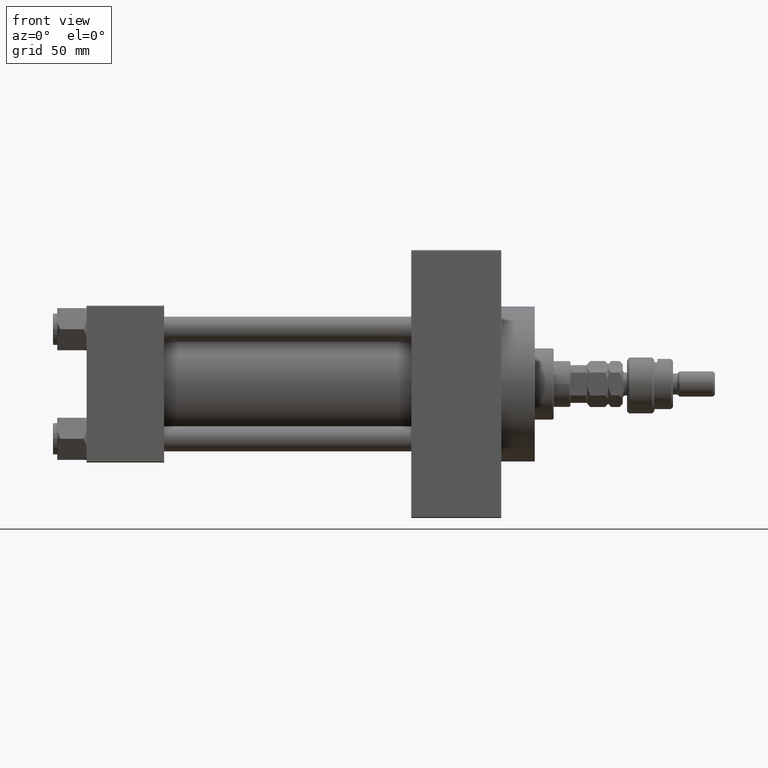
[diagram: clean part render]
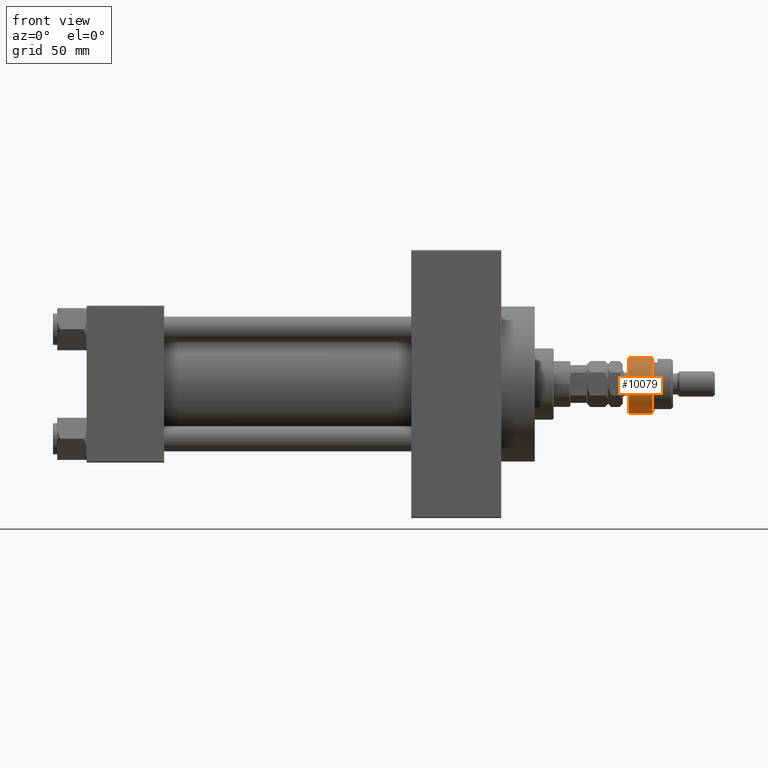
[diagram: same view with one face highlighted and labeled with its STEP entity id]
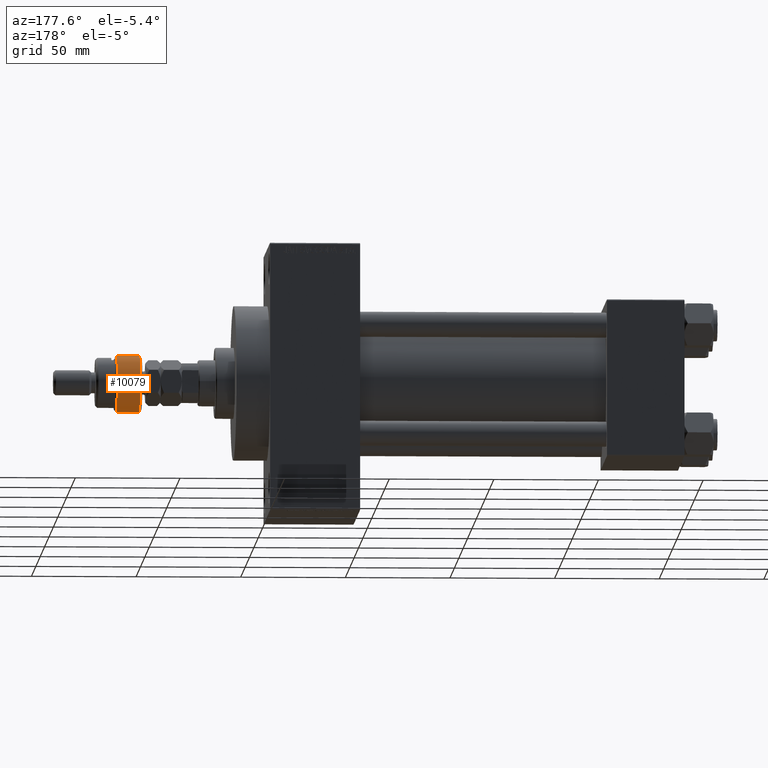
[diagram: same view with one face highlighted and labeled with its STEP entity id]
A machine part, front view. The second image highlights one B-rep face of the part: STEP entity #10079.
A second angle (auxiliary view) of the same face is appended — the face is thin or edge-on in the first view.
In plain terms, the highlighted cylindrical surface (edge-blend (fillet) strip) has radius 14 mm, axis along (-1, -0, 0).
Its self-contained STEP definition (entity closure, byte-faithful):
#3 = AXIS2_PLACEMENT_3D ( 'NONE', #33288, #6467, #48958 ) ;
#603 = ORIENTED_EDGE ( 'NONE', *, *, #37774, .T. ) ;
#926 = EDGE_CURVE ( 'NONE', #7327, #20882, #2562, .T. ) ;
#1398 = AXIS2_PLACEMENT_3D ( 'NONE', #3940, #27468, #19375 ) ;
#2562 = LINE ( 'NONE', #17998, #39945 ) ;
#2857 = CIRCLE ( 'NONE', #27877, 14.00000000000000000 ) ;
#3214 = CARTESIAN_POINT ( 'NONE',  ( 0.000000000000000000, 0.000000000000000000, 12.00000000000002842 ) ) ;
#3940 = CARTESIAN_POINT ( 'NONE',  ( 0.000000000000000000, 0.000000000000000000, 1.000000000000018208 ) ) ;
#5854 = DIRECTION ( 'NONE',  ( -0.000000000000000000, -0.000000000000000000, -1.000000000000000000 ) ) ;
#6217 = VECTOR ( 'NONE', #33834, 1000.000000000000000 ) ;
#6467 = DIRECTION ( 'NONE',  ( -0.000000000000000000, -0.000000000000000000, 1.000000000000000000 ) ) ;
#7327 = VERTEX_POINT ( 'NONE', #30680 ) ;
#7760 = DIRECTION ( 'NONE',  ( 0.000000000000000000, 0.000000000000000000, -1.000000000000000000 ) ) ;
#8658 = AXIS2_PLACEMENT_3D ( 'NONE', #29715, #11456, #38266 ) ;
#10079 = ADVANCED_FACE ( 'NONE', ( #26167 ), #33510, .T. ) ;
#11456 = DIRECTION ( 'NONE',  ( -0.000000000000000000, -0.000000000000000000, -1.000000000000000000 ) ) ;
#13220 = ORIENTED_EDGE ( 'NONE', *, *, #46482, .T. ) ;
#15116 = CARTESIAN_POINT ( 'NONE',  ( -12.64911064067351809, -5.999999999999999112, 1.000000000000021760 ) ) ;
#17998 = CARTESIAN_POINT ( 'NONE',  ( -12.64911064067351809, -5.999999999999999112, 14.50000000000000000 ) ) ;
#19375 = DIRECTION ( 'NONE',  ( 1.000000000000000000, 0.000000000000000000, 0.000000000000000000 ) ) ;
#19518 = VERTEX_POINT ( 'NONE', #26555 ) ;
#20204 = CARTESIAN_POINT ( 'NONE',  ( -12.64911064067351809, 6.000000000000000000, 12.00000000000002842 ) ) ;
#20882 = VERTEX_POINT ( 'NONE', #15116 ) ;
#24483 = ORIENTED_EDGE ( 'NONE', *, *, #24629, .T. ) ;
#24629 = EDGE_CURVE ( 'NONE', #20882, #19518, #27499, .T. ) ;
#25759 = LINE ( 'NONE', #37378, #6217 ) ;
#26167 = FACE_OUTER_BOUND ( 'NONE', #27424, .T. ) ;
#26555 = CARTESIAN_POINT ( 'NONE',  ( 14.00000000000000000, 0.000000000000000000, 1.000000000000018208 ) ) ;
#27424 = EDGE_LOOP ( 'NONE', ( #29282, #603, #30194, #24483, #13220 ) ) ;
#27468 = DIRECTION ( 'NONE',  ( -0.000000000000000000, -0.000000000000000000, 1.000000000000000000 ) ) ;
#27499 = CIRCLE ( 'NONE', #3, 14.00000000000000000 ) ;
#27877 = AXIS2_PLACEMENT_3D ( 'NONE', #3214, #7760, #30532 ) ;
#29282 = ORIENTED_EDGE ( 'NONE', *, *, #45750, .F. ) ;
#29715 = CARTESIAN_POINT ( 'NONE',  ( 0.000000000000000000, 0.000000000000000000, 13.00000000000000000 ) ) ;
#30194 = ORIENTED_EDGE ( 'NONE', *, *, #926, .T. ) ;
#30532 = DIRECTION ( 'NONE',  ( 1.000000000000000000, 0.000000000000000000, 0.000000000000000000 ) ) ;
#30680 = CARTESIAN_POINT ( 'NONE',  ( -12.64911064067351809, -5.999999999999999112, 12.00000000000002842 ) ) ;
#33288 = CARTESIAN_POINT ( 'NONE',  ( 0.000000000000000000, 0.000000000000000000, 1.000000000000018208 ) ) ;
#33510 = CYLINDRICAL_SURFACE ( 'NONE', #8658, 14.00000000000000000 ) ;
#33834 = DIRECTION ( 'NONE',  ( -0.000000000000000000, -0.000000000000000000, -1.000000000000000000 ) ) ;
#36327 = CARTESIAN_POINT ( 'NONE',  ( -12.64911064067351809, 6.000000000000000000, 1.000000000000021760 ) ) ;
#37378 = CARTESIAN_POINT ( 'NONE',  ( -12.64911064067351809, 6.000000000000000000, 14.50000000000000000 ) ) ;
#37774 = EDGE_CURVE ( 'NONE', #45573, #7327, #2857, .T. ) ;
#38266 = DIRECTION ( 'NONE',  ( -1.000000000000000000, 0.000000000000000000, 0.000000000000000000 ) ) ;
#39945 = VECTOR ( 'NONE', #5854, 1000.000000000000000 ) ;
#45573 = VERTEX_POINT ( 'NONE', #20204 ) ;
#45750 = EDGE_CURVE ( 'NONE', #45573, #45850, #25759, .T. ) ;
#45850 = VERTEX_POINT ( 'NONE', #36327 ) ;
#46482 = EDGE_CURVE ( 'NONE', #19518, #45850, #46599, .T. ) ;
#46599 = CIRCLE ( 'NONE', #1398, 14.00000000000000000 ) ;
#48958 = DIRECTION ( 'NONE',  ( 1.000000000000000000, 0.000000000000000000, 0.000000000000000000 ) ) ;